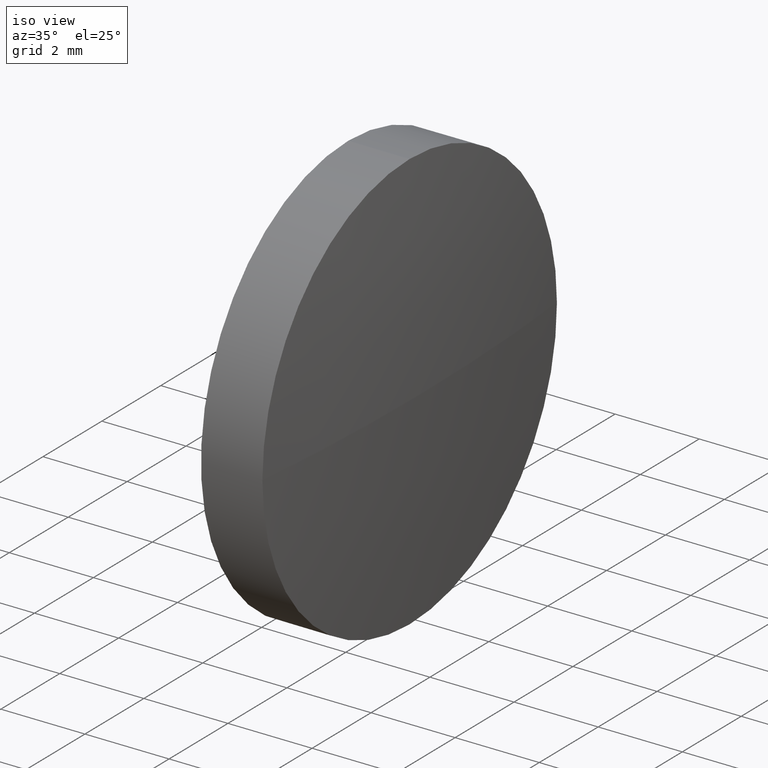
[diagram: clean part render]
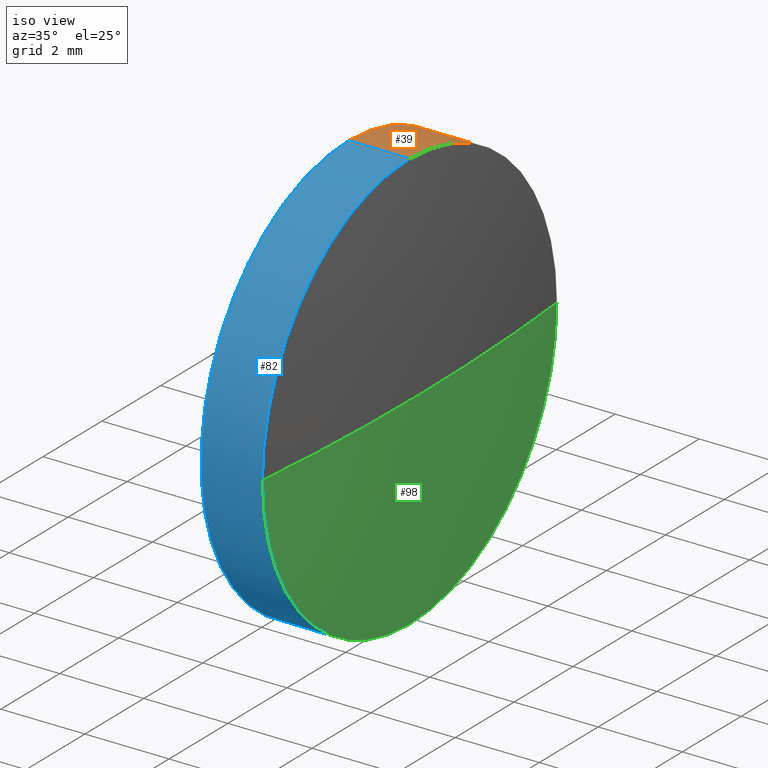
[diagram: same view with three faces highlighted in distinct colors, each labeled with its STEP entity id]
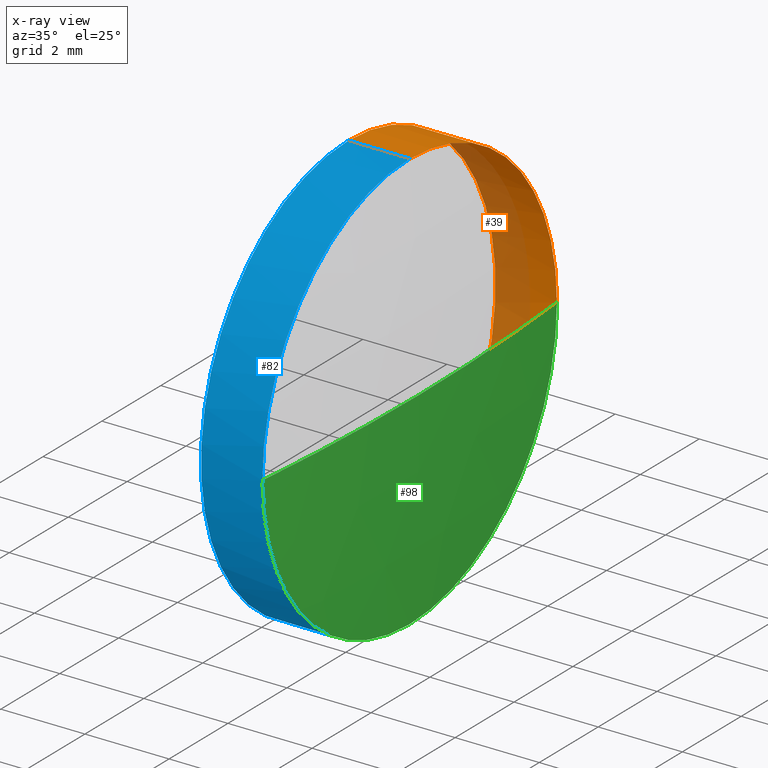
[diagram: x-ray of the same camera — body ghosted, the three highlighted faces saturated]
A machine part, iso view with three faces highlighted in distinct colors.
The next image is the same camera in x-ray (body ghosted, the three faces saturated) — at least one of them is partly hidden behind the body in this view.
Their STEP definitions:

[orange] entity #39 — the highlighted cylindrical surface (partial cylindrical patch) has radius 5 mm, axis along (-1, -0, -0).
#1 = EDGE_CURVE ( 'NONE', #105, #24, #130, .T. ) ;
#10 = EDGE_CURVE ( 'NONE', #12, #34, #21, .T. ) ;
#12 = VERTEX_POINT ( 'NONE', #99 ) ;
#13 = VERTEX_POINT ( 'NONE', #22 ) ;
#21 = CIRCLE ( 'NONE', #85, 5.000000000000004400 ) ;
#22 = CARTESIAN_POINT ( 'NONE',  ( 1102.543462945326800, 183.3935781701384300, 5.000000000000004400 ) ) ;
#24 = VERTEX_POINT ( 'NONE', #180 ) ;
#25 = DIRECTION ( 'NONE',  ( -1.000000000000000000, -0.0000000000000000000, -0.0000000000000000000 ) ) ;
#28 = CARTESIAN_POINT ( 'NONE',  ( 1100.285790691261400, 183.3935781701384300, -5.000000000000004400 ) ) ;
#34 = VERTEX_POINT ( 'NONE', #91 ) ;
#35 = VECTOR ( 'NONE', #41, 1000.000000000000000 ) ;
#37 = CARTESIAN_POINT ( 'NONE',  ( 1100.285790691261400, 183.3935781701384300, 0.0000000000000000000 ) ) ;
#39 = ADVANCED_FACE ( 'NONE', ( #173 ), #93, .T. ) ;
#41 = DIRECTION ( 'NONE',  ( -1.000000000000000000, -0.0000000000000000000, -0.0000000000000000000 ) ) ;
#43 = AXIS2_PLACEMENT_3D ( 'NONE', #183, #25, #69 ) ;
#50 = DIRECTION ( 'NONE',  ( 0.0000000000000000000, 0.0000000000000000000, 1.000000000000000000 ) ) ;
#53 = EDGE_LOOP ( 'NONE', ( #86, #112, #71, #90, #162 ) ) ;
#55 = AXIS2_PLACEMENT_3D ( 'NONE', #37, #166, #154 ) ;
#65 = CIRCLE ( 'NONE', #184, 5.000000000000004400 ) ;
#69 = DIRECTION ( 'NONE',  ( 0.0000000000000000000, 0.0000000000000000000, 1.000000000000000000 ) ) ;
#70 = DIRECTION ( 'NONE',  ( -1.000000000000000000, -0.0000000000000000000, -0.0000000000000000000 ) ) ;
#71 = ORIENTED_EDGE ( 'NONE', *, *, #1, .F. ) ;
#74 = DIRECTION ( 'NONE',  ( -1.000000000000000000, -0.0000000000000000000, -0.0000000000000000000 ) ) ;
#85 = AXIS2_PLACEMENT_3D ( 'NONE', #114, #143, #50 ) ;
#86 = ORIENTED_EDGE ( 'NONE', *, *, #10, .T. ) ;
#90 = ORIENTED_EDGE ( 'NONE', *, *, #164, .F. ) ;
#91 = CARTESIAN_POINT ( 'NONE',  ( 1102.543462945326800, 183.3935781701384300, -5.000000000000004400 ) ) ;
#93 = CYLINDRICAL_SURFACE ( 'NONE', #55, 5.000000000000004400 ) ;
#99 = CARTESIAN_POINT ( 'NONE',  ( 1102.543462945326800, 188.3935781701383100, 0.0000000000000000000 ) ) ;
#102 = CARTESIAN_POINT ( 'NONE',  ( 1101.083462945326800, 183.3935781701384300, 5.000000000000004400 ) ) ;
#105 = VERTEX_POINT ( 'NONE', #102 ) ;
#112 = ORIENTED_EDGE ( 'NONE', *, *, #157, .T. ) ;
#114 = CARTESIAN_POINT ( 'NONE',  ( 1102.543462945326800, 183.3935781701384300, 0.0000000000000000000 ) ) ;
#122 = DIRECTION ( 'NONE',  ( 0.0000000000000000000, 0.0000000000000000000, 1.000000000000000000 ) ) ;
#130 = CIRCLE ( 'NONE', #43, 5.000000000000004400 ) ;
#143 = DIRECTION ( 'NONE',  ( -1.000000000000000000, -0.0000000000000000000, -0.0000000000000000000 ) ) ;
#145 = VECTOR ( 'NONE', #74, 1000.000000000000000 ) ;
#148 = LINE ( 'NONE', #149, #145 ) ;
#149 = CARTESIAN_POINT ( 'NONE',  ( 1100.285790691261400, 183.3935781701384300, 5.000000000000004400 ) ) ;
#154 = DIRECTION ( 'NONE',  ( 0.0000000000000000000, 0.0000000000000000000, 1.000000000000000000 ) ) ;
#157 = EDGE_CURVE ( 'NONE', #34, #24, #169, .T. ) ;
#161 = CARTESIAN_POINT ( 'NONE',  ( 1102.543462945326800, 183.3935781701384300, 0.0000000000000000000 ) ) ;
#162 = ORIENTED_EDGE ( 'NONE', *, *, #175, .T. ) ;
#164 = EDGE_CURVE ( 'NONE', #13, #105, #148, .T. ) ;
#166 = DIRECTION ( 'NONE',  ( -1.000000000000000000, -0.0000000000000000000, -0.0000000000000000000 ) ) ;
#169 = LINE ( 'NONE', #28, #35 ) ;
#173 = FACE_OUTER_BOUND ( 'NONE', #53, .T. ) ;
#175 = EDGE_CURVE ( 'NONE', #13, #12, #65, .T. ) ;
#180 = CARTESIAN_POINT ( 'NONE',  ( 1101.083462945326800, 183.3935781701384300, -5.000000000000004400 ) ) ;
#183 = CARTESIAN_POINT ( 'NONE',  ( 1101.083462945326800, 183.3935781701384300, 0.0000000000000000000 ) ) ;
#184 = AXIS2_PLACEMENT_3D ( 'NONE', #161, #70, #122 ) ;

[blue] entity #82 — the highlighted cylindrical surface (partial cylindrical patch) has radius 5 mm, axis along (-1, -0, -0).
#13 = VERTEX_POINT ( 'NONE', #22 ) ;
#14 = CARTESIAN_POINT ( 'NONE',  ( 1102.543462945326800, 183.3935781701384300, 0.0000000000000000000 ) ) ;
#22 = CARTESIAN_POINT ( 'NONE',  ( 1102.543462945326800, 183.3935781701384300, 5.000000000000004400 ) ) ;
#23 = AXIS2_PLACEMENT_3D ( 'NONE', #129, #72, #170 ) ;
#24 = VERTEX_POINT ( 'NONE', #180 ) ;
#26 = CIRCLE ( 'NONE', #23, 5.000000000000004400 ) ;
#28 = CARTESIAN_POINT ( 'NONE',  ( 1100.285790691261400, 183.3935781701384300, -5.000000000000004400 ) ) ;
#29 = ORIENTED_EDGE ( 'NONE', *, *, #119, .T. ) ;
#31 = CARTESIAN_POINT ( 'NONE',  ( 1101.083462945326800, 183.3935781701384300, 0.0000000000000000000 ) ) ;
#34 = VERTEX_POINT ( 'NONE', #91 ) ;
#35 = VECTOR ( 'NONE', #41, 1000.000000000000000 ) ;
#41 = DIRECTION ( 'NONE',  ( -1.000000000000000000, -0.0000000000000000000, -0.0000000000000000000 ) ) ;
#47 = DIRECTION ( 'NONE',  ( -1.000000000000000000, -0.0000000000000000000, -0.0000000000000000000 ) ) ;
#54 = DIRECTION ( 'NONE',  ( 0.0000000000000000000, 0.0000000000000000000, 1.000000000000000000 ) ) ;
#61 = CIRCLE ( 'NONE', #167, 5.000000000000004400 ) ;
#66 = ORIENTED_EDGE ( 'NONE', *, *, #150, .F. ) ;
#67 = CIRCLE ( 'NONE', #160, 5.000000000000004400 ) ;
#72 = DIRECTION ( 'NONE',  ( -1.000000000000000000, -0.0000000000000000000, -0.0000000000000000000 ) ) ;
#74 = DIRECTION ( 'NONE',  ( -1.000000000000000000, -0.0000000000000000000, -0.0000000000000000000 ) ) ;
#75 = FACE_OUTER_BOUND ( 'NONE', #87, .T. ) ;
#76 = EDGE_CURVE ( 'NONE', #34, #174, #26, .T. ) ;
#82 = ADVANCED_FACE ( 'NONE', ( #75 ), #177, .T. ) ;
#84 = CARTESIAN_POINT ( 'NONE',  ( 1102.543462945326800, 178.3935781701379100, -6.123233995736625300E-016 ) ) ;
#87 = EDGE_LOOP ( 'NONE', ( #97, #168, #29, #120, #66 ) ) ;
#91 = CARTESIAN_POINT ( 'NONE',  ( 1102.543462945326800, 183.3935781701384300, -5.000000000000004400 ) ) ;
#97 = ORIENTED_EDGE ( 'NONE', *, *, #157, .F. ) ;
#102 = CARTESIAN_POINT ( 'NONE',  ( 1101.083462945326800, 183.3935781701384300, 5.000000000000004400 ) ) ;
#105 = VERTEX_POINT ( 'NONE', #102 ) ;
#116 = DIRECTION ( 'NONE',  ( -1.000000000000000000, -0.0000000000000000000, -0.0000000000000000000 ) ) ;
#117 = DIRECTION ( 'NONE',  ( -1.000000000000000000, -0.0000000000000000000, -0.0000000000000000000 ) ) ;
#119 = EDGE_CURVE ( 'NONE', #174, #13, #61, .T. ) ;
#120 = ORIENTED_EDGE ( 'NONE', *, *, #164, .T. ) ;
#125 = CARTESIAN_POINT ( 'NONE',  ( 1100.285790691261400, 183.3935781701384300, 0.0000000000000000000 ) ) ;
#129 = CARTESIAN_POINT ( 'NONE',  ( 1102.543462945326800, 183.3935781701384300, 0.0000000000000000000 ) ) ;
#131 = DIRECTION ( 'NONE',  ( 0.0000000000000000000, 0.0000000000000000000, 1.000000000000000000 ) ) ;
#133 = DIRECTION ( 'NONE',  ( 0.0000000000000000000, 0.0000000000000000000, 1.000000000000000000 ) ) ;
#144 = AXIS2_PLACEMENT_3D ( 'NONE', #125, #47, #133 ) ;
#145 = VECTOR ( 'NONE', #74, 1000.000000000000000 ) ;
#148 = LINE ( 'NONE', #149, #145 ) ;
#149 = CARTESIAN_POINT ( 'NONE',  ( 1100.285790691261400, 183.3935781701384300, 5.000000000000004400 ) ) ;
#150 = EDGE_CURVE ( 'NONE', #24, #105, #67, .T. ) ;
#157 = EDGE_CURVE ( 'NONE', #34, #24, #169, .T. ) ;
#160 = AXIS2_PLACEMENT_3D ( 'NONE', #31, #117, #54 ) ;
#164 = EDGE_CURVE ( 'NONE', #13, #105, #148, .T. ) ;
#167 = AXIS2_PLACEMENT_3D ( 'NONE', #14, #116, #131 ) ;
#168 = ORIENTED_EDGE ( 'NONE', *, *, #76, .T. ) ;
#169 = LINE ( 'NONE', #28, #35 ) ;
#170 = DIRECTION ( 'NONE',  ( 0.0000000000000000000, 0.0000000000000000000, 1.000000000000000000 ) ) ;
#174 = VERTEX_POINT ( 'NONE', #84 ) ;
#177 = CYLINDRICAL_SURFACE ( 'NONE', #144, 5.000000000000004400 ) ;
#180 = CARTESIAN_POINT ( 'NONE',  ( 1101.083462945326800, 183.3935781701384300, -5.000000000000004400 ) ) ;

[green] entity #98 — the highlighted spherical surface has radius 52.2033 mm.
#2 = DIRECTION ( 'NONE',  ( 0.0000000000000000000, 1.000000000000000000, 0.0000000000000000000 ) ) ;
#10 = EDGE_CURVE ( 'NONE', #12, #34, #21, .T. ) ;
#12 = VERTEX_POINT ( 'NONE', #99 ) ;
#15 = CIRCLE ( 'NONE', #68, 52.20333333333340400 ) ;
#16 = EDGE_CURVE ( 'NONE', #78, #174, #15, .T. ) ;
#21 = CIRCLE ( 'NONE', #85, 5.000000000000004400 ) ;
#23 = AXIS2_PLACEMENT_3D ( 'NONE', #129, #72, #170 ) ;
#26 = CIRCLE ( 'NONE', #23, 5.000000000000004400 ) ;
#30 = DIRECTION ( 'NONE',  ( -0.0000000000000000000, 0.0000000000000000000, 1.000000000000000000 ) ) ;
#34 = VERTEX_POINT ( 'NONE', #91 ) ;
#50 = DIRECTION ( 'NONE',  ( 0.0000000000000000000, 0.0000000000000000000, 1.000000000000000000 ) ) ;
#51 = DIRECTION ( 'NONE',  ( 1.000000000000000000, 0.0000000000000000000, 0.0000000000000000000 ) ) ;
#59 = EDGE_LOOP ( 'NONE', ( #94, #146, #138, #101 ) ) ;
#68 = AXIS2_PLACEMENT_3D ( 'NONE', #81, #95, #92 ) ;
#72 = DIRECTION ( 'NONE',  ( -1.000000000000000000, -0.0000000000000000000, -0.0000000000000000000 ) ) ;
#76 = EDGE_CURVE ( 'NONE', #34, #174, #26, .T. ) ;
#78 = VERTEX_POINT ( 'NONE', #110 ) ;
#81 = CARTESIAN_POINT ( 'NONE',  ( 1050.580129611993500, 183.3935781701377700, 0.0000000000000000000 ) ) ;
#83 = DIRECTION ( 'NONE',  ( -0.0000000000000000000, 0.0000000000000000000, -1.000000000000000000 ) ) ;
#84 = CARTESIAN_POINT ( 'NONE',  ( 1102.543462945326800, 178.3935781701379100, -6.123233995736625300E-016 ) ) ;
#85 = AXIS2_PLACEMENT_3D ( 'NONE', #114, #143, #50 ) ;
#91 = CARTESIAN_POINT ( 'NONE',  ( 1102.543462945326800, 183.3935781701384300, -5.000000000000004400 ) ) ;
#92 = DIRECTION ( 'NONE',  ( 0.0000000000000000000, 1.000000000000000000, 1.224646799147353200E-016 ) ) ;
#94 = ORIENTED_EDGE ( 'NONE', *, *, #106, .F. ) ;
#95 = DIRECTION ( 'NONE',  ( 0.0000000000000000000, 1.224646799147353200E-016, -1.000000000000000000 ) ) ;
#98 = ADVANCED_FACE ( 'NONE', ( #151 ), #172, .T. ) ;
#99 = CARTESIAN_POINT ( 'NONE',  ( 1102.543462945326800, 188.3935781701383100, 0.0000000000000000000 ) ) ;
#101 = ORIENTED_EDGE ( 'NONE', *, *, #10, .F. ) ;
#103 = AXIS2_PLACEMENT_3D ( 'NONE', #159, #83, #2 ) ;
#104 = CIRCLE ( 'NONE', #152, 52.20333333333337600 ) ;
#106 = EDGE_CURVE ( 'NONE', #78, #12, #104, .T. ) ;
#110 = CARTESIAN_POINT ( 'NONE',  ( 1102.783462945326800, 183.3935781701377700, 0.0000000000000000000 ) ) ;
#114 = CARTESIAN_POINT ( 'NONE',  ( 1102.543462945326800, 183.3935781701384300, 0.0000000000000000000 ) ) ;
#129 = CARTESIAN_POINT ( 'NONE',  ( 1102.543462945326800, 183.3935781701384300, 0.0000000000000000000 ) ) ;
#138 = ORIENTED_EDGE ( 'NONE', *, *, #76, .F. ) ;
#143 = DIRECTION ( 'NONE',  ( -1.000000000000000000, -0.0000000000000000000, -0.0000000000000000000 ) ) ;
#146 = ORIENTED_EDGE ( 'NONE', *, *, #16, .T. ) ;
#147 = CARTESIAN_POINT ( 'NONE',  ( 1050.580129611993500, 183.3935781701377700, 0.0000000000000000000 ) ) ;
#151 = FACE_OUTER_BOUND ( 'NONE', #59, .T. ) ;
#152 = AXIS2_PLACEMENT_3D ( 'NONE', #147, #30, #51 ) ;
#159 = CARTESIAN_POINT ( 'NONE',  ( 1050.580129611993500, 183.3935781701377700, 0.0000000000000000000 ) ) ;
#170 = DIRECTION ( 'NONE',  ( 0.0000000000000000000, 0.0000000000000000000, 1.000000000000000000 ) ) ;
#172 = SPHERICAL_SURFACE ( 'NONE', #103, 52.20333333333339700 ) ;
#174 = VERTEX_POINT ( 'NONE', #84 ) ;